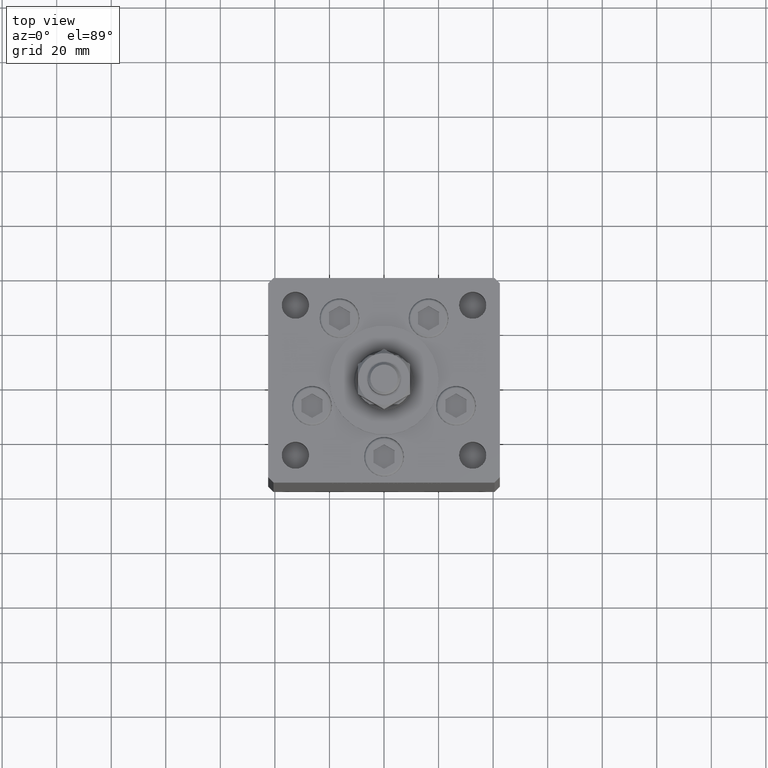
[diagram: clean part render]
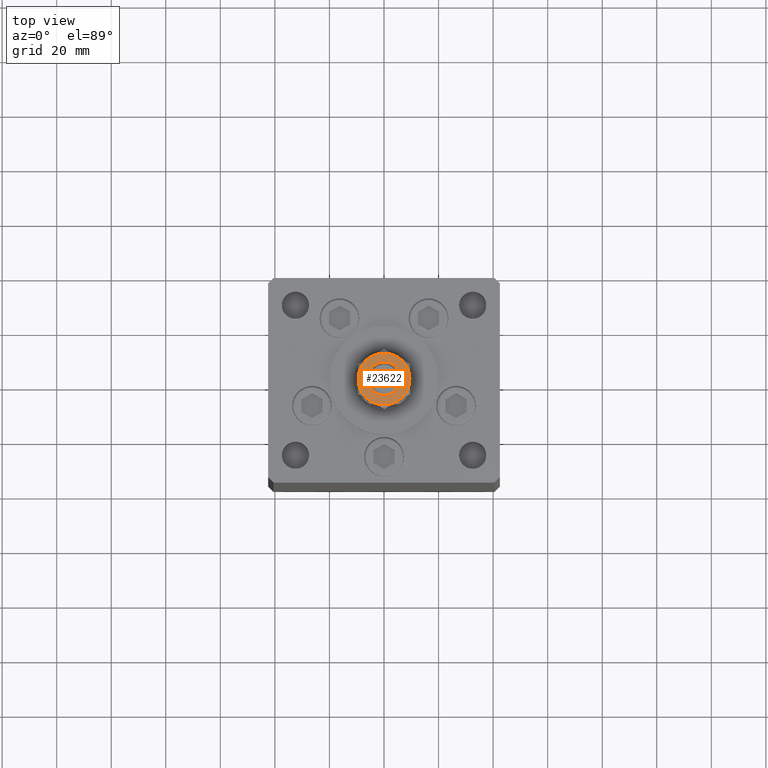
[diagram: same view with one face highlighted and labeled with its STEP entity id]
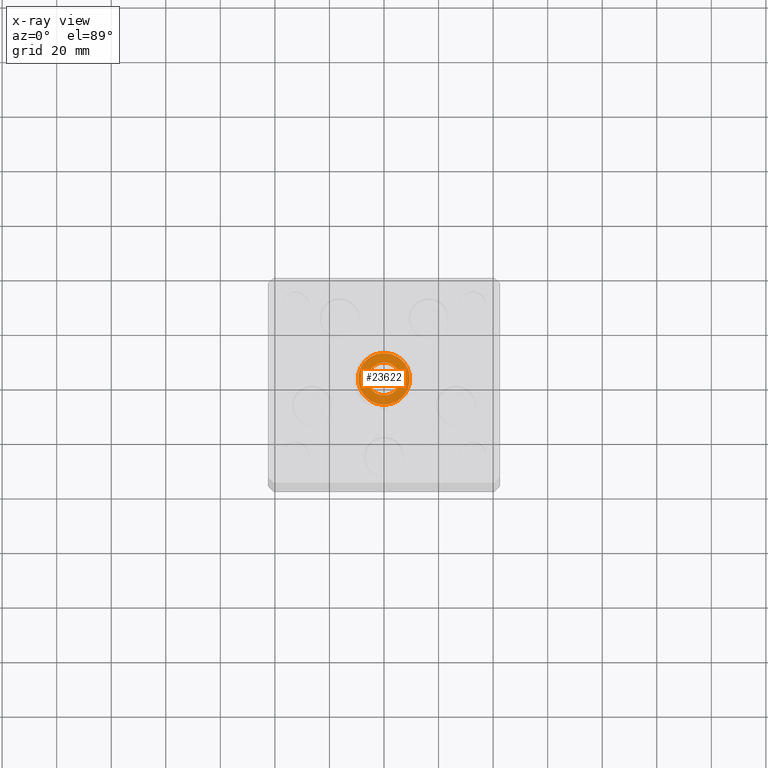
[diagram: x-ray of the same camera — body ghosted, the highlighted face saturated]
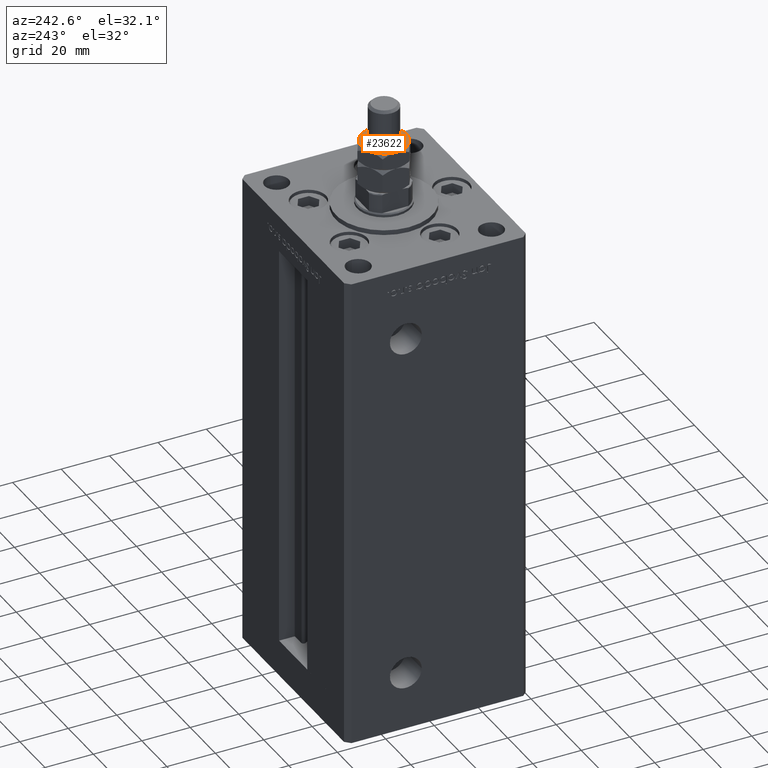
[diagram: same view with one face highlighted and labeled with its STEP entity id]
A machine part, top view. The second image highlights one B-rep face of the part: STEP entity #23622.
The next image is the same camera in x-ray: the body ghosted, the highlighted face saturated — about 0% of this face is hidden behind the body in this view.
A second angle (auxiliary view) of the same face is appended — the face is thin or edge-on in the first view.
In plain terms, the highlighted planar face has unit normal (0, 0, 1).
Its self-contained STEP definition (entity closure, byte-faithful):
#144 = CIRCLE ( 'NONE', #34016, 9.499999999999994671 ) ;
#154 = DIRECTION ( 'NONE',  ( 0.000000000000000000, -0.000000000000000000, 1.000000000000000000 ) ) ;
#479 = DIRECTION ( 'NONE',  ( 1.000000000000000000, 0.000000000000000000, 0.000000000000000000 ) ) ;
#680 = CIRCLE ( 'NONE', #17051, 9.499999999999994671 ) ;
#2113 = EDGE_LOOP ( 'NONE', ( #25599, #5427, #4153, #11883, #37599, #3436 ) ) ;
#3304 = EDGE_CURVE ( 'NONE', #11809, #46099, #32056, .T. ) ;
#3436 = ORIENTED_EDGE ( 'NONE', *, *, #38199, .T. ) ;
#3480 = EDGE_LOOP ( 'NONE', ( #45633, #45820 ) ) ;
#4153 = ORIENTED_EDGE ( 'NONE', *, *, #43157, .T. ) ;
#4835 = DIRECTION ( 'NONE',  ( 1.000000000000000000, 0.000000000000000000, 0.000000000000000000 ) ) ;
#5033 = AXIS2_PLACEMENT_3D ( 'NONE', #34721, #17869, #479 ) ;
#5265 = DIRECTION ( 'NONE',  ( 1.000000000000000000, 0.000000000000000000, 0.000000000000000000 ) ) ;
#5427 = ORIENTED_EDGE ( 'NONE', *, *, #25736, .T. ) ;
#6154 = PLANE ( 'NONE',  #18342 ) ;
#6432 = CIRCLE ( 'NONE', #40272, 9.499999999999994671 ) ;
#7206 = DIRECTION ( 'NONE',  ( -0.000000000000000000, 0.000000000000000000, -1.000000000000000000 ) ) ;
#7640 = VERTEX_POINT ( 'NONE', #27544 ) ;
#7761 = AXIS2_PLACEMENT_3D ( 'NONE', #43328, #36261, #40343 ) ;
#8115 = VERTEX_POINT ( 'NONE', #23810 ) ;
#8631 = DIRECTION ( 'NONE',  ( 0.000000000000000000, -0.000000000000000000, 1.000000000000000000 ) ) ;
#8933 = CARTESIAN_POINT ( 'NONE',  ( 0.000000000000000000, 0.000000000000000000, 17.00000000000000000 ) ) ;
#10407 = EDGE_CURVE ( 'NONE', #11991, #21506, #31089, .T. ) ;
#11024 = DIRECTION ( 'NONE',  ( 1.000000000000000000, 0.000000000000000000, -0.000000000000000000 ) ) ;
#11809 = VERTEX_POINT ( 'NONE', #19313 ) ;
#11883 = ORIENTED_EDGE ( 'NONE', *, *, #32806, .T. ) ;
#11991 = VERTEX_POINT ( 'NONE', #14903 ) ;
#12962 = DIRECTION ( 'NONE',  ( 1.000000000000000000, 0.000000000000000000, 0.000000000000000000 ) ) ;
#13813 = DIRECTION ( 'NONE',  ( 0.000000000000000000, 0.000000000000000000, 1.000000000000000000 ) ) ;
#14903 = CARTESIAN_POINT ( 'NONE',  ( 4.750000000000000000, -8.227241335952161450, 17.00000000000000000 ) ) ;
#16206 = CARTESIAN_POINT ( 'NONE',  ( 0.000000000000000000, 0.000000000000000000, 17.00000000000000000 ) ) ;
#17051 = AXIS2_PLACEMENT_3D ( 'NONE', #16206, #154, #49600 ) ;
#17869 = DIRECTION ( 'NONE',  ( 0.000000000000000000, -0.000000000000000000, 1.000000000000000000 ) ) ;
#18134 = EDGE_CURVE ( 'NONE', #46099, #11809, #46805, .T. ) ;
#18342 = AXIS2_PLACEMENT_3D ( 'NONE', #27087, #31447, #11024 ) ;
#19194 = FACE_OUTER_BOUND ( 'NONE', #2113, .T. ) ;
#19313 = CARTESIAN_POINT ( 'NONE',  ( 6.000000000000000000, 0.000000000000000000, 17.00000000000000000 ) ) ;
#19679 = AXIS2_PLACEMENT_3D ( 'NONE', #41771, #8631, #12962 ) ;
#19706 = CARTESIAN_POINT ( 'NONE',  ( 0.000000000000000000, 0.000000000000000000, 17.00000000000000000 ) ) ;
#21506 = VERTEX_POINT ( 'NONE', #44775 ) ;
#21639 = AXIS2_PLACEMENT_3D ( 'NONE', #19706, #7206, #52843 ) ;
#23622 = ADVANCED_FACE ( 'NONE', ( #31707, #19194 ), #6154, .T. ) ;
#23810 = CARTESIAN_POINT ( 'NONE',  ( -9.499999999999994671, 0.000000000000000000, 17.00000000000000000 ) ) ;
#25599 = ORIENTED_EDGE ( 'NONE', *, *, #10407, .T. ) ;
#25736 = EDGE_CURVE ( 'NONE', #21506, #47384, #144, .T. ) ;
#27087 = CARTESIAN_POINT ( 'NONE',  ( 0.000000000000000000, 0.000000000000000000, 17.00000000000000000 ) ) ;
#27544 = CARTESIAN_POINT ( 'NONE',  ( -4.749999999999998224, 8.227241335952161450, 17.00000000000000000 ) ) ;
#29738 = AXIS2_PLACEMENT_3D ( 'NONE', #42603, #33929, #4835 ) ;
#30505 = VERTEX_POINT ( 'NONE', #34139 ) ;
#31089 = CIRCLE ( 'NONE', #5033, 9.499999999999994671 ) ;
#31447 = DIRECTION ( 'NONE',  ( 0.000000000000000000, -0.000000000000000000, 1.000000000000000000 ) ) ;
#31519 = CIRCLE ( 'NONE', #29738, 9.499999999999994671 ) ;
#31665 = EDGE_CURVE ( 'NONE', #8115, #30505, #6432, .T. ) ;
#31707 = FACE_BOUND ( 'NONE', #3480, .T. ) ;
#32056 = CIRCLE ( 'NONE', #21639, 6.000000000000000000 ) ;
#32806 = EDGE_CURVE ( 'NONE', #7640, #8115, #31519, .T. ) ;
#33929 = DIRECTION ( 'NONE',  ( 0.000000000000000000, -0.000000000000000000, 1.000000000000000000 ) ) ;
#34016 = AXIS2_PLACEMENT_3D ( 'NONE', #8933, #13813, #46416 ) ;
#34139 = CARTESIAN_POINT ( 'NONE',  ( -4.749999999999999112, -8.227241335952165002, 17.00000000000000000 ) ) ;
#34721 = CARTESIAN_POINT ( 'NONE',  ( 0.000000000000000000, 0.000000000000000000, 17.00000000000000000 ) ) ;
#35005 = CARTESIAN_POINT ( 'NONE',  ( 4.749999999999998224, 8.227241335952161450, 17.00000000000000000 ) ) ;
#36261 = DIRECTION ( 'NONE',  ( -0.000000000000000000, 0.000000000000000000, -1.000000000000000000 ) ) ;
#37599 = ORIENTED_EDGE ( 'NONE', *, *, #31665, .T. ) ;
#38199 = EDGE_CURVE ( 'NONE', #30505, #11991, #43978, .T. ) ;
#40272 = AXIS2_PLACEMENT_3D ( 'NONE', #50370, #46293, #5265 ) ;
#40343 = DIRECTION ( 'NONE',  ( 1.000000000000000000, 0.000000000000000000, 0.000000000000000000 ) ) ;
#41771 = CARTESIAN_POINT ( 'NONE',  ( 0.000000000000000000, 0.000000000000000000, 17.00000000000000000 ) ) ;
#42603 = CARTESIAN_POINT ( 'NONE',  ( 0.000000000000000000, 0.000000000000000000, 17.00000000000000000 ) ) ;
#43157 = EDGE_CURVE ( 'NONE', #47384, #7640, #680, .T. ) ;
#43328 = CARTESIAN_POINT ( 'NONE',  ( 0.000000000000000000, 0.000000000000000000, 17.00000000000000000 ) ) ;
#43892 = CARTESIAN_POINT ( 'NONE',  ( -6.000000000000000000, 7.347880794884119736E-16, 17.00000000000000000 ) ) ;
#43978 = CIRCLE ( 'NONE', #19679, 9.499999999999994671 ) ;
#44775 = CARTESIAN_POINT ( 'NONE',  ( 9.499999999999994671, 1.502314598737158637E-15, 17.00000000000000000 ) ) ;
#45633 = ORIENTED_EDGE ( 'NONE', *, *, #3304, .T. ) ;
#45820 = ORIENTED_EDGE ( 'NONE', *, *, #18134, .T. ) ;
#46099 = VERTEX_POINT ( 'NONE', #43892 ) ;
#46293 = DIRECTION ( 'NONE',  ( 0.000000000000000000, -0.000000000000000000, 1.000000000000000000 ) ) ;
#46416 = DIRECTION ( 'NONE',  ( 1.000000000000000000, 0.000000000000000000, 0.000000000000000000 ) ) ;
#46805 = CIRCLE ( 'NONE', #7761, 6.000000000000000000 ) ;
#47384 = VERTEX_POINT ( 'NONE', #35005 ) ;
#49600 = DIRECTION ( 'NONE',  ( 1.000000000000000000, 0.000000000000000000, 0.000000000000000000 ) ) ;
#50370 = CARTESIAN_POINT ( 'NONE',  ( 0.000000000000000000, 0.000000000000000000, 17.00000000000000000 ) ) ;
#52843 = DIRECTION ( 'NONE',  ( 1.000000000000000000, 0.000000000000000000, 0.000000000000000000 ) ) ;